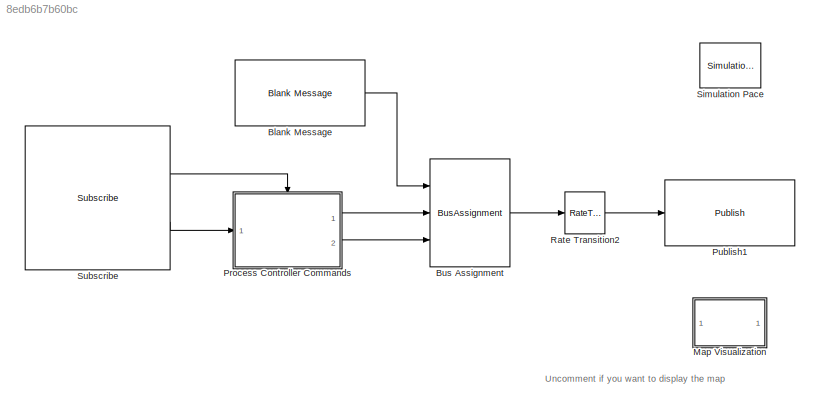
MODEL slx_8edb6b7b60bc
KIND model
CONFIG AbsTol = auto
CONFIG EnableMultiTasking = off
CONFIG FixedStep = 0.05
CONFIG MaxStep = auto
CONFIG MinStep = auto
CONFIG RelTol = 1e-3
CONFIG SampleTimeConstraint = Unconstrained
CONFIG Solver = FixedStepAuto
CONFIG SolverName = FixedStepAuto
CONFIG StartTime = 0.0
CONFIG StopTime = inf
BLOCK [Reference] Blank Message  REF=robotlib/Blank Message
  Ports = [0, 1]
  SourceBlock = robotlib/Blank Message
  SourceLibraryInfo = This block requires Robotics System Toolbox
  SourceProductBaseCode = RO
  SourceProductName = Robotics System Toolbox
  SourceType = ROS Blank Message
BLOCK [BusAssignment] Bus Assignment
  AssignedSignals = Linear.X,Angular.Z
  DialogController = Simulink.DDGSource_BusAssignment
  Ports = [3, 1]
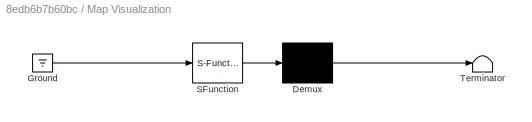
BLOCK [SubSystem] Map Visualization
  ErrorFcn = Stateflow.Translate.translate
  PermitHierarchicalResolution = ExplicitOnly
  Ports = []
  RequestExecContextInheritance = off
  SFBlockType = MATLAB Function
  TreatAsAtomicUnit = on
  Variant = off
BLOCK [Demux] Map Visualization/ Demux 
  Outputs = 1
  Ports = [1, 1]
BLOCK [Ground] Map Visualization/ Ground 
BLOCK [S-Function] Map Visualization/ SFunction 
  EnableBusSupport = on
  FunctionName = sf_sfun
  PortCounts = [1 1]
  Ports = [1, 1]
  SFcnIsStateOwnerBlock = off
  SFunctionDeploymentMode = off
  Tag = Stateflow S-Function drive_around 2
BLOCK [Terminator] Map Visualization/ Terminator 
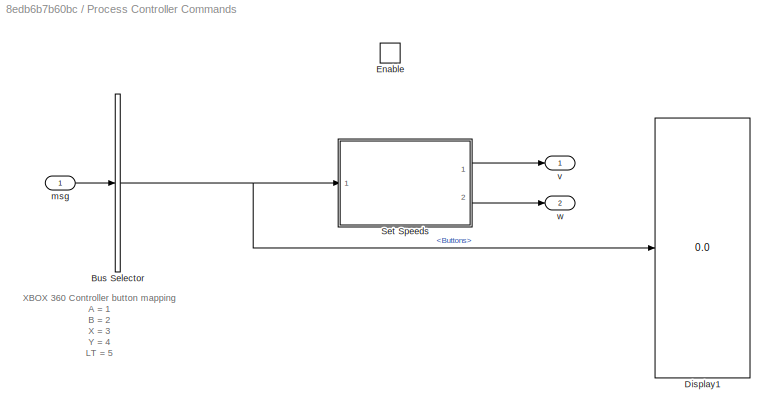
BLOCK [SubSystem] Process Controller Commands
  Ports = [1, 2, 1]
  RequestExecContextInheritance = off
  TreatAsAtomicUnit = on
  Variant = off
BLOCK [BusSelector] Process Controller Commands/Bus Selector
  OutputAsBus = off
  OutputSignals = Buttons
  Ports = [1, 1]
BLOCK [Display] Process Controller Commands/Display1
  Decimation = 1
  Ports = [1]
BLOCK [EnablePort] Process Controller Commands/Enable
  Ports = []
  StatesWhenEnabling = reset
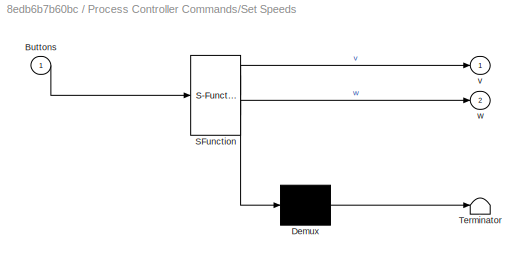
BLOCK [SubSystem] Process Controller Commands/Set Speeds
  ErrorFcn = Stateflow.Translate.translate
  PermitHierarchicalResolution = ExplicitOnly
  Ports = [1, 2]
  RequestExecContextInheritance = off
  SFBlockType = Chart
  TreatAsAtomicUnit = on
  Variant = off
BLOCK [Demux] Process Controller Commands/Set Speeds/ Demux 
  Outputs = 1
  Ports = [1, 1]
BLOCK [S-Function] Process Controller Commands/Set Speeds/ SFunction 
  EnableBusSupport = on
  FunctionName = sf_sfun
  PortCounts = [1 3]
  Ports = [1, 3]
  SFcnIsStateOwnerBlock = off
  SFunctionDeploymentMode = off
  Tag = Stateflow S-Function drive_around 6
BLOCK [Terminator] Process Controller Commands/Set Speeds/ Terminator 
BLOCK [Inport] Process Controller Commands/Set Speeds/Buttons
  IconDisplay = Port number
BLOCK [Outport] Process Controller Commands/Set Speeds/v
  IconDisplay = Port number
BLOCK [Outport] Process Controller Commands/Set Speeds/w
  IconDisplay = Port number
  Port = 2
BLOCK [Inport] Process Controller Commands/msg
  IconDisplay = Port number
BLOCK [Outport] Process Controller Commands/v
  IconDisplay = Port number
BLOCK [Outport] Process Controller Commands/w
  IconDisplay = Port number
  Port = 2
BLOCK [Reference] Publish1  REF=robotlib/Publish
  Ports = [1]
  SourceBlock = robotlib/Publish
  SourceLibraryInfo = This block requires Robotics System Toolbox
  SourceProductBaseCode = RO
  SourceProductName = Robotics System Toolbox
  SourceType = ROS Publish
BLOCK [RateTransition] Rate Transition2
BLOCK [Reference] Simulation Pace  REF=aerolibanimutils/Simulation Pace
  AttributesFormatString = %<SleepMode>\n%<SimulationPace> sec/sec
  Ports = []
  SourceBlock = aerolibanimutils/Simulation Pace
  SourceProductBaseCode = AE
  SourceProductName = Aerospace Blockset
  SourceType = Simulation Pace
BLOCK [Reference] Subscribe  REF=robotlib/Subscribe
  Ports = [0, 2]
  SourceBlock = robotlib/Subscribe
  SourceLibraryInfo = This block requires Robotics System Toolbox
  SourceProductBaseCode = RO
  SourceProductName = Robotics System Toolbox
  SourceType = ROS Subscribe
ANNOTATION (root): Uncomment if you want to display the map
ANNOTATION Process Controller Commands: XBOX 360 Controller button mapping A = 1 B = 2 X = 3 Y = 4 LT = 5 RT = 6
LINE Blank Message:1 -> Bus Assignment:1
LINE Bus Assignment:1 -> Rate Transition2:1
NET Process Controller Commands/Bus Selector:1 -> Process Controller Commands/Display1:1, Process Controller Commands/Set Speeds:1
LINE Process Controller Commands/Set Speeds:1 -> Process Controller Commands/v:1
LINE Process Controller Commands/Set Speeds:2 -> Process Controller Commands/w:1
LINE Process Controller Commands/msg:1 -> Process Controller Commands/Bus Selector:1
LINE Process Controller Commands:1 -> Bus Assignment:2
LINE Process Controller Commands:2 -> Bus Assignment:3
LINE Rate Transition2:1 -> Publish1:1
LINE Subscribe:1 -> Process Controller Commands:enable
LINE Subscribe:2 -> Process Controller Commands:1
note: NET lines group one-source signal fan-out (src -> all destinations, sorted); 1:1 wires keep LINE
CHART Map Visualization states=1 transitions=1
  STATE_LABEL 'eML_blk_kernel()'
  STATE_LABEL "SCRIPT:\nfunction visualizeMap\n\n    coder.extrinsic('showMap');\n    showMap;\n    \nend\n"
CHART Process Controller Commands/Set Speeds states=0 transitions=24
